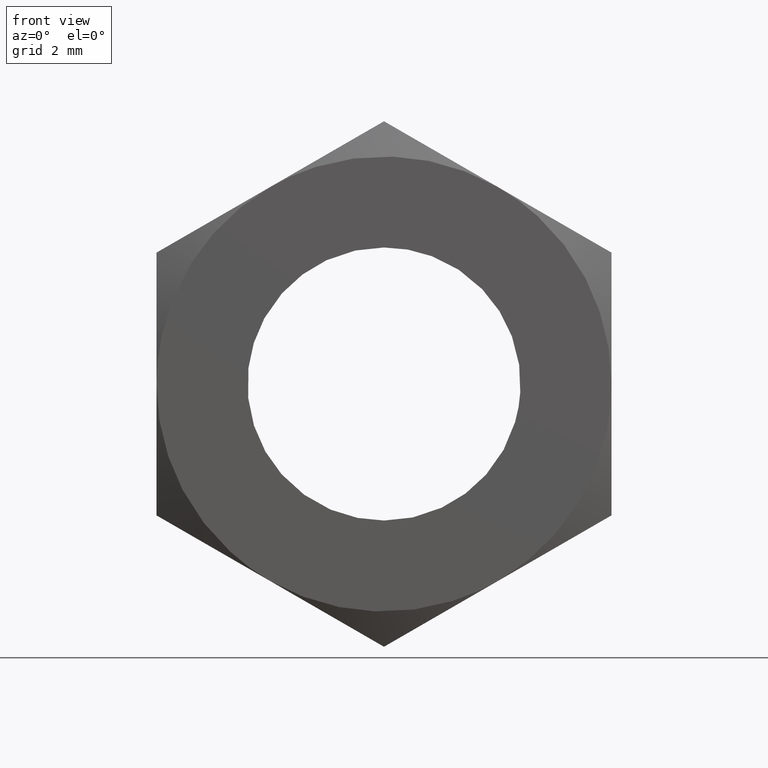
[diagram: clean part render]
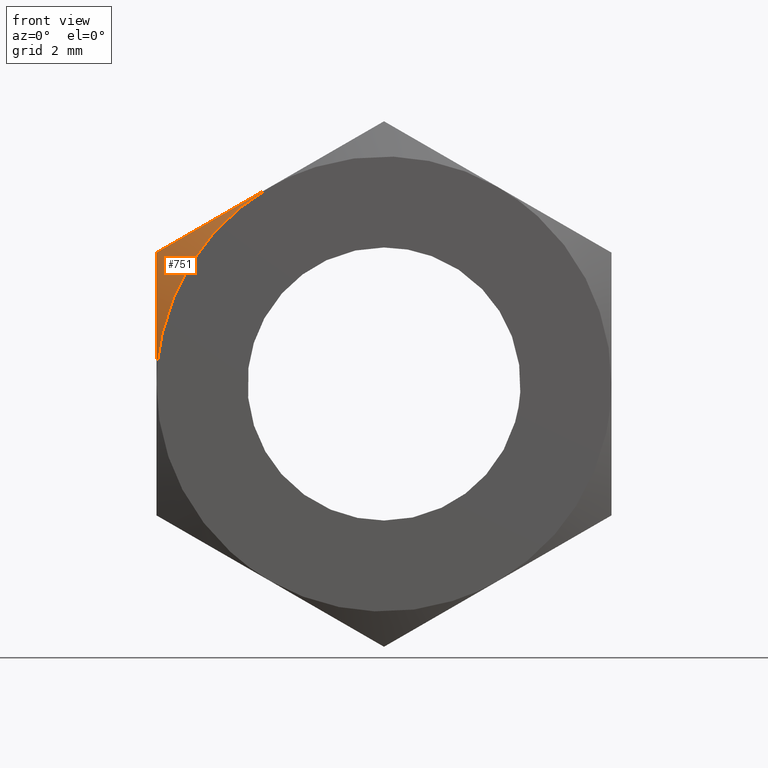
[diagram: same view with one face highlighted and labeled with its STEP entity id]
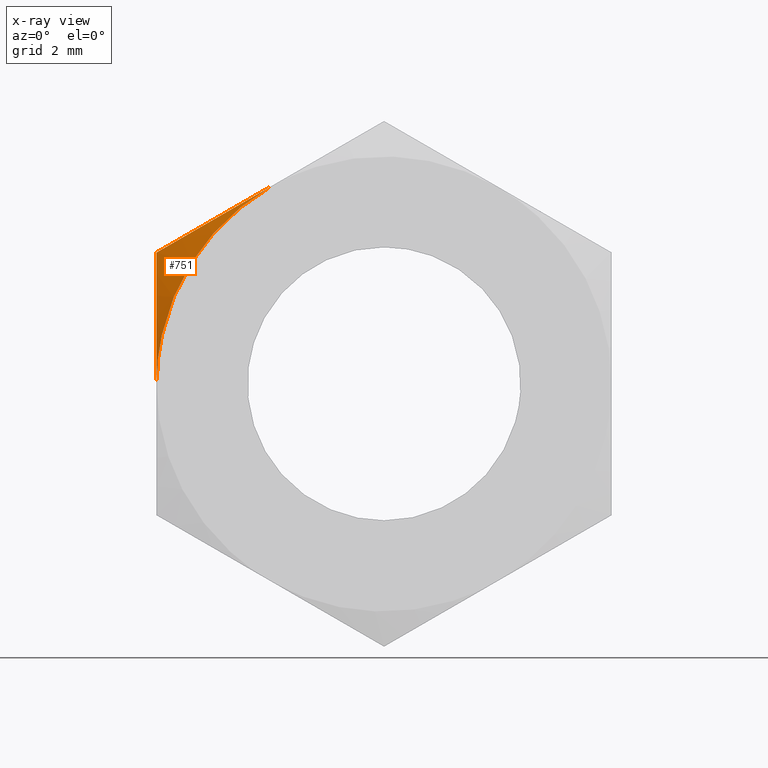
[diagram: x-ray of the same camera — body ghosted, the highlighted face saturated]
A machine part, front view. The second image highlights one B-rep face of the part: STEP entity #751.
The next image is the same camera in x-ray: the body ghosted, the highlighted face saturated — about 0% of this face is hidden behind the body in this view.
In plain terms, the highlighted face is a freeform B-spline surface patch.
Its self-contained STEP definition (entity closure, byte-faithful):
#479=CARTESIAN_POINT('',(-5.000003372813290,-4.553409602993680,2.886755639193465));
#480=VERTEX_POINT('',#479);
#481=CARTESIAN_POINT('',(-2.500000000000000,-5.0,4.330127018922211));
#482=VERTEX_POINT('',#481);
#483=CARTESIAN_POINT('',(-5.000003372813290,-4.553409602993680,2.886755639193465));
#484=CARTESIAN_POINT('',(-4.591800351519335,-4.689478700047566,3.122430723834567));
#485=CARTESIAN_POINT('',(-4.180620990038047,-4.801624573892677,3.359824199841750));
#486=CARTESIAN_POINT('',(-3.557419910390353,-4.918143962773447,3.719627953597011));
#487=CARTESIAN_POINT('',(-3.348611639876510,-4.948346523087348,3.840182945875693));
#488=CARTESIAN_POINT('',(-2.928563096943389,-4.989203702026398,4.082697047843555));
#489=CARTESIAN_POINT('',(-2.717320722964074,-4.999841428735058,4.204657370869381));
#490=CARTESIAN_POINT('',(-2.503183050407777,-4.999999419531587,4.328289291672482));
#491=CARTESIAN_POINT('',(-2.501591583864260,-5.000000004340189,4.329208121429812));
#492=CARTESIAN_POINT('',(-2.500000000000000,-5.0,4.330127018922211));
#493=B_SPLINE_CURVE_WITH_KNOTS('',3,(#483,#484,#485,#486,#487,#488,#489,#490,#491,#492),.UNSPECIFIED.,.F.,.U.,(4,2,2,2,4),(0.0,0.250000000000000,0.374999999999999,0.499999999999999,0.500935881726905),.UNSPECIFIED.);
#494=EDGE_CURVE('',#480,#482,#493,.T.);
#524=CARTESIAN_POINT('',(-5.0,-5.0,-8.673617E-016));
#525=VERTEX_POINT('',#524);
#539=CARTESIAN_POINT('',(-5.0,-5.0,-8.673617E-016));
#540=CARTESIAN_POINT('',(-5.000000000330676,-4.999999999550569,0.000289795127857));
#541=CARTESIAN_POINT('',(-5.000000000661355,-4.999999984483686,0.000579591357490));
#542=CARTESIAN_POINT('',(-5.000000279395408,-4.999974962729295,0.244850822462410));
#543=CARTESIAN_POINT('',(-5.000000560520049,-4.989584447000460,0.489613546258527));
#544=CARTESIAN_POINT('',(-5.000000986235985,-4.958652014956560,0.857914369568911));
#545=CARTESIAN_POINT('',(-5.000001128299728,-4.945824176363103,0.980430766482951));
#546=CARTESIAN_POINT('',(-5.000001411375410,-4.915573889714610,1.223830999792514));
#547=CARTESIAN_POINT('',(-5.000001552604448,-4.898136960887074,1.344902850979259));
#548=CARTESIAN_POINT('',(-5.000002257327700,-4.800307453105426,1.947369191359232));
#549=CARTESIAN_POINT('',(-5.000002816574342,-4.688116636074319,2.420121990006482));
#550=CARTESIAN_POINT('',(-5.000003372813290,-4.553409602993680,2.886755639193465));
#551=B_SPLINE_CURVE_WITH_KNOTS('',3,(#539,#540,#541,#542,#543,#544,#545,#546,#547,#548,#549,#550),.UNSPECIFIED.,.F.,.U.,(4,2,2,2,2,4),(0.499851526954844,0.500000000000000,0.625000000000000,0.687500000000000,0.750000000000000,1.0),.UNSPECIFIED.);
#552=EDGE_CURVE('',#525,#480,#551,.T.);
#604=CARTESIAN_POINT('',(-2.500000000000000,-5.0,4.330127018922211));
#605=CARTESIAN_POINT('',(-4.999998535914706,-5.0,2.886750500658101));
#606=CARTESIAN_POINT('',(-5.0,-5.0,-8.673617E-016));
#614=(BOUNDED_CURVE()B_SPLINE_CURVE(2,(#604,#605,#606),.UNSPECIFIED.,.F.,.U.)CURVE()GEOMETRIC_REPRESENTATION_ITEM()QUASI_UNIFORM_CURVE()RATIONAL_B_SPLINE_CURVE((1.0,0.866025403784438,1.0))REPRESENTATION_ITEM(''));
#615=EDGE_CURVE('',#482,#525,#614,.T.);
#732=CARTESIAN_POINT('',(-2.299811141032350,-5.011164759925159,4.417896097332315));
#733=CARTESIAN_POINT('',(-2.675061652942961,-4.541965724070393,5.138745623849379));
#734=CARTESIAN_POINT('',(-5.133666530441489,-5.011164759925159,2.942684355577432));
#735=CARTESIAN_POINT('',(-5.971305308320353,-4.541965724070393,3.422829786269666));
#736=CARTESIAN_POINT('',(-4.974468997754680,-5.011164759925159,-0.248184209042730));
#737=CARTESIAN_POINT('',(-5.786132183738284,-4.541965724070392,-0.288679382681035));
#745=(BOUNDED_SURFACE()B_SPLINE_SURFACE(1,2,((#732,#734,#736),(#733,#735,#737)),.UNSPECIFIED.,.F.,.F.,.U.)B_SPLINE_SURFACE_WITH_KNOTS((2,2),(3,3),(0.0,1.0),(0.0,6.793468064875188),.UNSPECIFIED.)GEOMETRIC_REPRESENTATION_ITEM()RATIONAL_B_SPLINE_SURFACE(((1.0,0.838184844459482,0.991624471965713),(1.0,0.838184844459482,0.991624471965713)))REPRESENTATION_ITEM('')SURFACE());
#746=ORIENTED_EDGE('',*,*,#552,.F.);
#747=ORIENTED_EDGE('',*,*,#615,.F.);
#748=ORIENTED_EDGE('',*,*,#494,.F.);
#749=EDGE_LOOP('',(#746,#747,#748));
#750=FACE_OUTER_BOUND('',#749,.T.);
#751=ADVANCED_FACE('',(#750),#745,.T.);